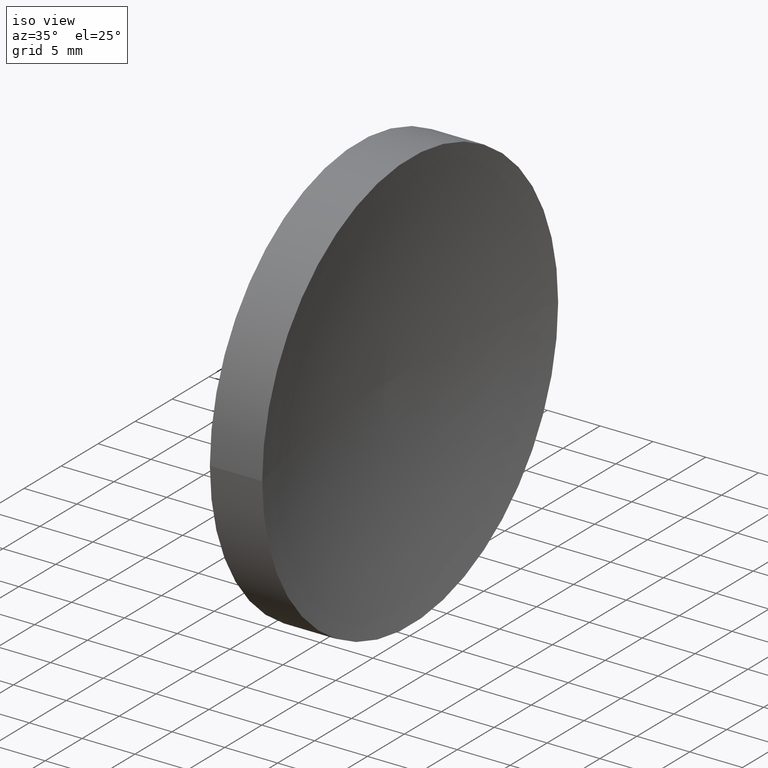
[diagram: clean part render]
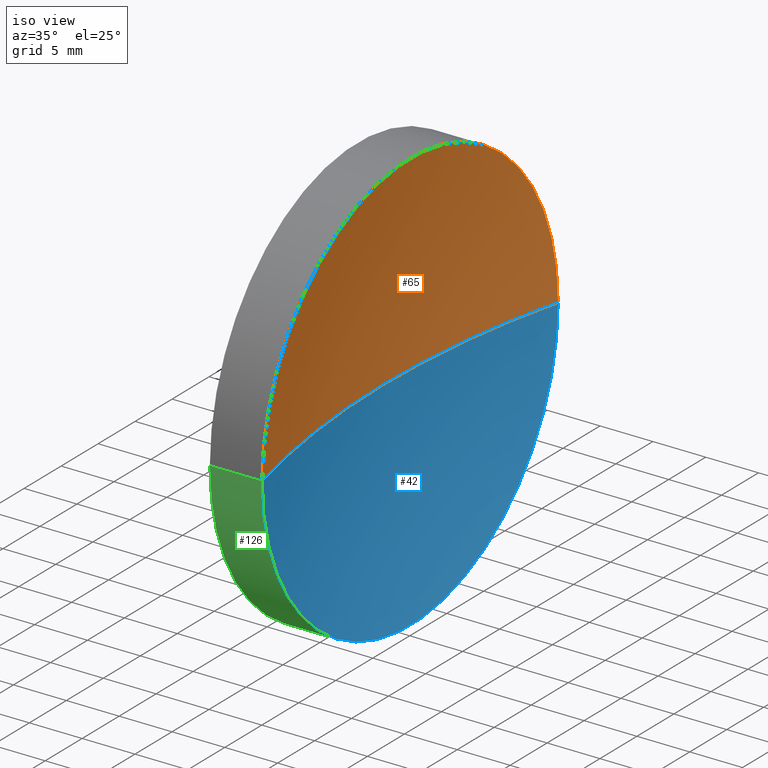
[diagram: same view with three faces highlighted in distinct colors, each labeled with its STEP entity id]
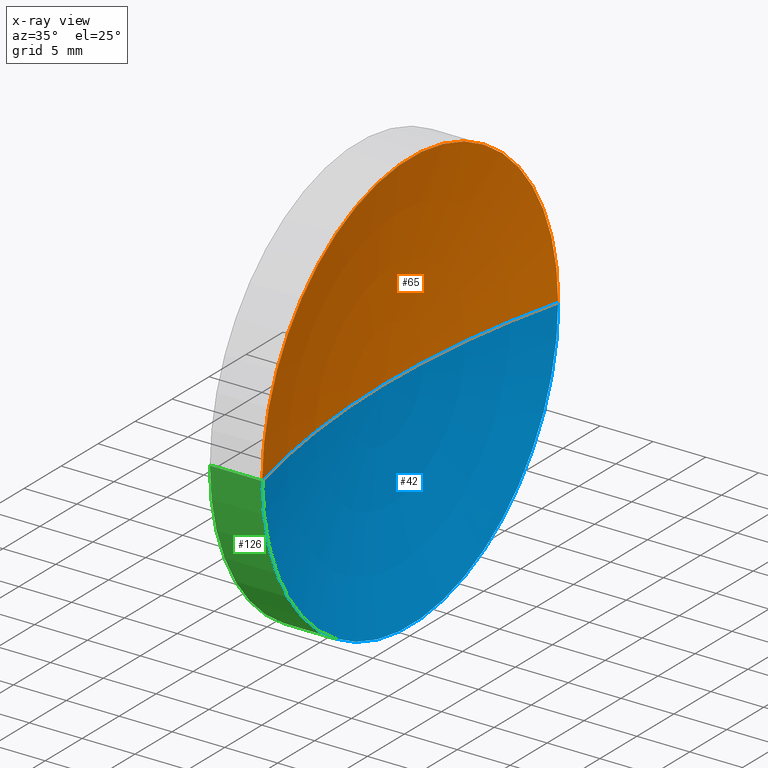
[diagram: x-ray of the same camera — body ghosted, the three highlighted faces saturated]
A machine part, iso view with three faces highlighted in distinct colors.
The next image is the same camera in x-ray (body ghosted, the three faces saturated) — at least one of them is partly hidden behind the body in this view.
Their STEP definitions:

[orange] entity #65 — the highlighted toroidal blend (fillet) surface has major radius 0.0068 mm and minor (blend) radius 82.62 mm.
#4 = CARTESIAN_POINT ( 'NONE',  ( 200.0954469770586900, 65.15061194377257400, -8.376440594174026000E-019 ) ) ;
#5 = CARTESIAN_POINT ( 'NONE',  ( 119.9344168071347200, 85.15745182658623900, 2.449293598294714000E-015 ) ) ;
#7 = DIRECTION ( 'NONE',  ( -1.000000000000000000, 0.0000000000000000000, 0.0000000000000000000 ) ) ;
#11 = AXIS2_PLACEMENT_3D ( 'NONE', #159, #156, #21 ) ;
#13 = VERTEX_POINT ( 'NONE', #5 ) ;
#18 = DIRECTION ( 'NONE',  ( -1.000000000000000000, 6.488933942079480100E-016, -0.0000000000000000000 ) ) ;
#21 = DIRECTION ( 'NONE',  ( -6.488933942079480100E-016, -1.000000000000000000, 0.0000000000000000000 ) ) ;
#25 = VERTEX_POINT ( 'NONE', #80 ) ;
#30 = FACE_OUTER_BOUND ( 'NONE', #91, .T. ) ;
#33 = DIRECTION ( 'NONE',  ( -6.938893903907219500E-016, -1.000000000000000000, 0.0000000000000000000 ) ) ;
#38 = CARTESIAN_POINT ( 'NONE',  ( 200.0954469770586900, 65.16429170939970600, 0.0000000000000000000 ) ) ;
#44 = EDGE_CURVE ( 'NONE', #13, #25, #76, .T. ) ;
#48 = AXIS2_PLACEMENT_3D ( 'NONE', #38, #112, #7 ) ;
#58 = ORIENTED_EDGE ( 'NONE', *, *, #44, .F. ) ;
#60 = DIRECTION ( 'NONE',  ( -7.946652182046252500E-032, -1.224646799147353200E-016, 1.000000000000000000 ) ) ;
#65 = ADVANCED_FACE ( 'NONE', ( #30 ), #139, .F. ) ;
#76 = CIRCLE ( 'NONE', #158, 82.62000000000003300 ) ;
#80 = CARTESIAN_POINT ( 'NONE',  ( 117.4754472601862100, 65.15745182658619700, 0.0000000000000000000 ) ) ;
#84 = ORIENTED_EDGE ( 'NONE', *, *, #135, .F. ) ;
#91 = EDGE_LOOP ( 'NONE', ( #58, #84, #163 ) ) ;
#92 = CARTESIAN_POINT ( 'NONE',  ( 119.9344168071347100, 65.15745182658619700, 0.0000000000000000000 ) ) ;
#103 = DIRECTION ( 'NONE',  ( 0.0000000000000000000, -1.000000000000000000, -1.224646799147353000E-016 ) ) ;
#112 = DIRECTION ( 'NONE',  ( 0.0000000000000000000, -0.0000000000000000000, -1.000000000000000000 ) ) ;
#114 = VERTEX_POINT ( 'NONE', #157 ) ;
#121 = CIRCLE ( 'NONE', #153, 20.00000000000002500 ) ;
#135 = EDGE_CURVE ( 'NONE', #114, #13, #121, .T. ) ;
#139 = TOROIDAL_SURFACE ( 'NONE', #11, -0.006839882813563902300, 82.62000000000003300 ) ;
#141 = EDGE_CURVE ( 'NONE', #114, #25, #154, .T. ) ;
#153 = AXIS2_PLACEMENT_3D ( 'NONE', #92, #18, #33 ) ;
#154 = CIRCLE ( 'NONE', #48, 82.62000000000003300 ) ;
#156 = DIRECTION ( 'NONE',  ( -1.000000000000000000, 6.488933942079480100E-016, -0.0000000000000000000 ) ) ;
#157 = CARTESIAN_POINT ( 'NONE',  ( 119.9344168071347100, 45.15745182658613300, 0.0000000000000000000 ) ) ;
#158 = AXIS2_PLACEMENT_3D ( 'NONE', #4, #60, #103 ) ;
#159 = CARTESIAN_POINT ( 'NONE',  ( 200.0954469770586900, 65.15745182658614000, 0.0000000000000000000 ) ) ;
#163 = ORIENTED_EDGE ( 'NONE', *, *, #141, .T. ) ;

[blue] entity #42 — the highlighted toroidal blend (fillet) surface has major radius 0.0068 mm and minor (blend) radius 82.62 mm.
#4 = CARTESIAN_POINT ( 'NONE',  ( 200.0954469770586900, 65.15061194377257400, -8.376440594174026000E-019 ) ) ;
#5 = CARTESIAN_POINT ( 'NONE',  ( 119.9344168071347200, 85.15745182658623900, 2.449293598294714000E-015 ) ) ;
#7 = DIRECTION ( 'NONE',  ( -1.000000000000000000, 0.0000000000000000000, 0.0000000000000000000 ) ) ;
#9 = CARTESIAN_POINT ( 'NONE',  ( 119.9344168071347100, 65.15745182658619700, 0.0000000000000000000 ) ) ;
#13 = VERTEX_POINT ( 'NONE', #5 ) ;
#16 = CARTESIAN_POINT ( 'NONE',  ( 200.0954469770586900, 65.15745182658614000, 0.0000000000000000000 ) ) ;
#25 = VERTEX_POINT ( 'NONE', #80 ) ;
#29 = FACE_OUTER_BOUND ( 'NONE', #105, .T. ) ;
#38 = CARTESIAN_POINT ( 'NONE',  ( 200.0954469770586900, 65.16429170939970600, 0.0000000000000000000 ) ) ;
#42 = ADVANCED_FACE ( 'NONE', ( #29 ), #52, .F. ) ;
#44 = EDGE_CURVE ( 'NONE', #13, #25, #76, .T. ) ;
#48 = AXIS2_PLACEMENT_3D ( 'NONE', #38, #112, #7 ) ;
#52 = TOROIDAL_SURFACE ( 'NONE', #67, -0.006839882813563902300, 82.62000000000003300 ) ;
#57 = AXIS2_PLACEMENT_3D ( 'NONE', #9, #109, #162 ) ;
#60 = DIRECTION ( 'NONE',  ( -7.946652182046252500E-032, -1.224646799147353200E-016, 1.000000000000000000 ) ) ;
#67 = AXIS2_PLACEMENT_3D ( 'NONE', #16, #71, #69 ) ;
#69 = DIRECTION ( 'NONE',  ( -6.488933942079480100E-016, -1.000000000000000000, 0.0000000000000000000 ) ) ;
#71 = DIRECTION ( 'NONE',  ( -1.000000000000000000, 6.488933942079480100E-016, -0.0000000000000000000 ) ) ;
#76 = CIRCLE ( 'NONE', #158, 82.62000000000003300 ) ;
#79 = CIRCLE ( 'NONE', #57, 20.00000000000002500 ) ;
#80 = CARTESIAN_POINT ( 'NONE',  ( 117.4754472601862100, 65.15745182658619700, 0.0000000000000000000 ) ) ;
#89 = ORIENTED_EDGE ( 'NONE', *, *, #164, .F. ) ;
#103 = DIRECTION ( 'NONE',  ( 0.0000000000000000000, -1.000000000000000000, -1.224646799147353000E-016 ) ) ;
#105 = EDGE_LOOP ( 'NONE', ( #89, #133, #152 ) ) ;
#109 = DIRECTION ( 'NONE',  ( -1.000000000000000000, 6.488933942079480100E-016, -0.0000000000000000000 ) ) ;
#112 = DIRECTION ( 'NONE',  ( 0.0000000000000000000, -0.0000000000000000000, -1.000000000000000000 ) ) ;
#114 = VERTEX_POINT ( 'NONE', #157 ) ;
#133 = ORIENTED_EDGE ( 'NONE', *, *, #44, .T. ) ;
#141 = EDGE_CURVE ( 'NONE', #114, #25, #154, .T. ) ;
#152 = ORIENTED_EDGE ( 'NONE', *, *, #141, .F. ) ;
#154 = CIRCLE ( 'NONE', #48, 82.62000000000003300 ) ;
#157 = CARTESIAN_POINT ( 'NONE',  ( 119.9344168071347100, 45.15745182658613300, 0.0000000000000000000 ) ) ;
#158 = AXIS2_PLACEMENT_3D ( 'NONE', #4, #60, #103 ) ;
#162 = DIRECTION ( 'NONE',  ( -6.938893903907219500E-016, -1.000000000000000000, 0.0000000000000000000 ) ) ;
#164 = EDGE_CURVE ( 'NONE', #13, #114, #79, .T. ) ;

[green] entity #126 — the highlighted cylindrical surface (partial cylindrical patch) has radius 20 mm, axis along (-1, 0, -0).
#5 = CARTESIAN_POINT ( 'NONE',  ( 119.9344168071347200, 85.15745182658623900, 2.449293598294714000E-015 ) ) ;
#9 = CARTESIAN_POINT ( 'NONE',  ( 119.9344168071347100, 65.15745182658619700, 0.0000000000000000000 ) ) ;
#12 = LINE ( 'NONE', #28, #75 ) ;
#13 = VERTEX_POINT ( 'NONE', #5 ) ;
#15 = ORIENTED_EDGE ( 'NONE', *, *, #19, .T. ) ;
#19 = EDGE_CURVE ( 'NONE', #114, #124, #31, .T. ) ;
#26 = ORIENTED_EDGE ( 'NONE', *, *, #113, .F. ) ;
#28 = CARTESIAN_POINT ( 'NONE',  ( 110.0147892488423800, 85.15745182658621100, 2.449293598294708100E-015 ) ) ;
#31 = LINE ( 'NONE', #108, #111 ) ;
#41 = AXIS2_PLACEMENT_3D ( 'NONE', #61, #155, #116 ) ;
#47 = DIRECTION ( 'NONE',  ( -1.000000000000000000, 6.488933942079480100E-016, -0.0000000000000000000 ) ) ;
#57 = AXIS2_PLACEMENT_3D ( 'NONE', #9, #109, #162 ) ;
#61 = CARTESIAN_POINT ( 'NONE',  ( 114.9754472601862100, 65.15745182658619700, 0.0000000000000000000 ) ) ;
#63 = CYLINDRICAL_SURFACE ( 'NONE', #74, 20.00000000000001100 ) ;
#66 = ORIENTED_EDGE ( 'NONE', *, *, #164, .T. ) ;
#70 = EDGE_LOOP ( 'NONE', ( #123, #66, #15, #26 ) ) ;
#73 = FACE_OUTER_BOUND ( 'NONE', #70, .T. ) ;
#74 = AXIS2_PLACEMENT_3D ( 'NONE', #145, #47, #107 ) ;
#75 = VECTOR ( 'NONE', #122, 1000.000000000000000 ) ;
#79 = CIRCLE ( 'NONE', #57, 20.00000000000002500 ) ;
#95 = CARTESIAN_POINT ( 'NONE',  ( 114.9754472601862300, 85.15745182658619700, 2.449293598294706500E-015 ) ) ;
#101 = VERTEX_POINT ( 'NONE', #95 ) ;
#104 = CIRCLE ( 'NONE', #41, 20.00000000000000400 ) ;
#106 = DIRECTION ( 'NONE',  ( -1.000000000000000000, 6.488933942079480100E-016, -0.0000000000000000000 ) ) ;
#107 = DIRECTION ( 'NONE',  ( -6.938893903907224400E-016, -1.000000000000000000, 0.0000000000000000000 ) ) ;
#108 = CARTESIAN_POINT ( 'NONE',  ( 110.0147892488423500, 45.15745182658618300, 0.0000000000000000000 ) ) ;
#109 = DIRECTION ( 'NONE',  ( -1.000000000000000000, 6.488933942079480100E-016, -0.0000000000000000000 ) ) ;
#111 = VECTOR ( 'NONE', #106, 1000.000000000000000 ) ;
#113 = EDGE_CURVE ( 'NONE', #101, #124, #104, .T. ) ;
#114 = VERTEX_POINT ( 'NONE', #157 ) ;
#116 = DIRECTION ( 'NONE',  ( -6.938893903907227400E-016, -1.000000000000000000, 0.0000000000000000000 ) ) ;
#119 = CARTESIAN_POINT ( 'NONE',  ( 114.9754472601862000, 45.15745182658619000, 0.0000000000000000000 ) ) ;
#122 = DIRECTION ( 'NONE',  ( -1.000000000000000000, 6.488933942079480100E-016, -0.0000000000000000000 ) ) ;
#123 = ORIENTED_EDGE ( 'NONE', *, *, #143, .F. ) ;
#124 = VERTEX_POINT ( 'NONE', #119 ) ;
#126 = ADVANCED_FACE ( 'NONE', ( #73 ), #63, .T. ) ;
#143 = EDGE_CURVE ( 'NONE', #13, #101, #12, .T. ) ;
#145 = CARTESIAN_POINT ( 'NONE',  ( 110.0147892488423600, 65.15745182658619700, 0.0000000000000000000 ) ) ;
#155 = DIRECTION ( 'NONE',  ( -1.000000000000000000, 6.488933942079480100E-016, -0.0000000000000000000 ) ) ;
#157 = CARTESIAN_POINT ( 'NONE',  ( 119.9344168071347100, 45.15745182658613300, 0.0000000000000000000 ) ) ;
#162 = DIRECTION ( 'NONE',  ( -6.938893903907219500E-016, -1.000000000000000000, 0.0000000000000000000 ) ) ;
#164 = EDGE_CURVE ( 'NONE', #13, #114, #79, .T. ) ;